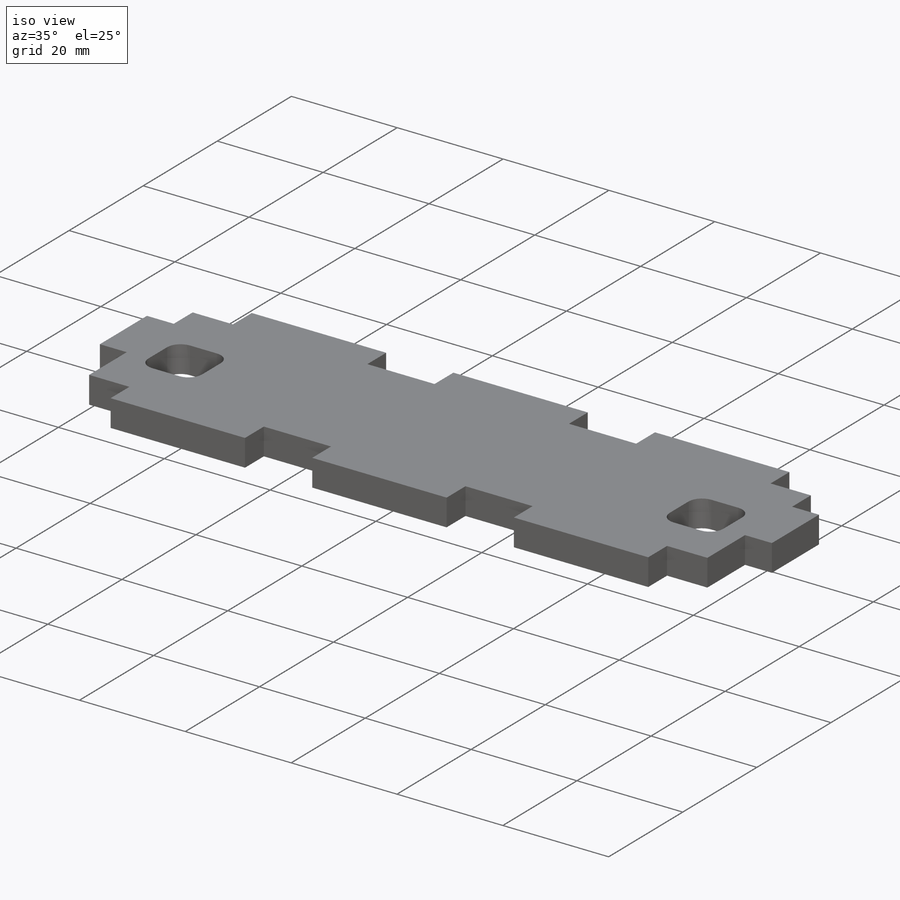
[diagram: iso view]
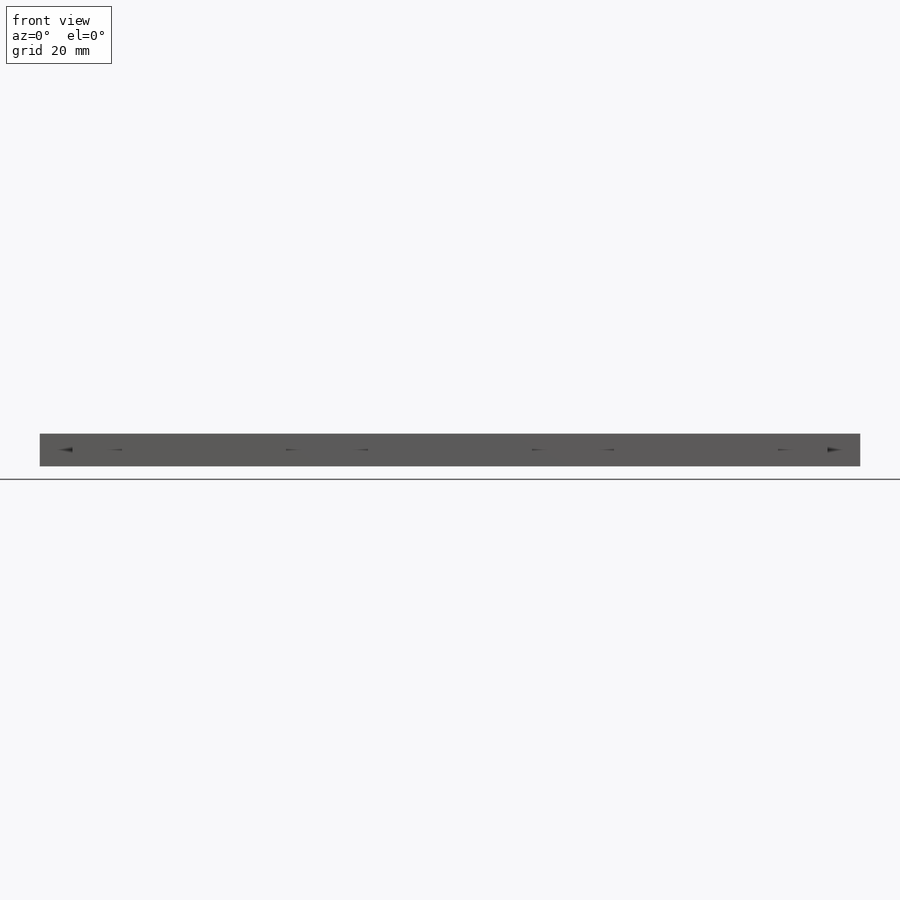
[diagram: front view]
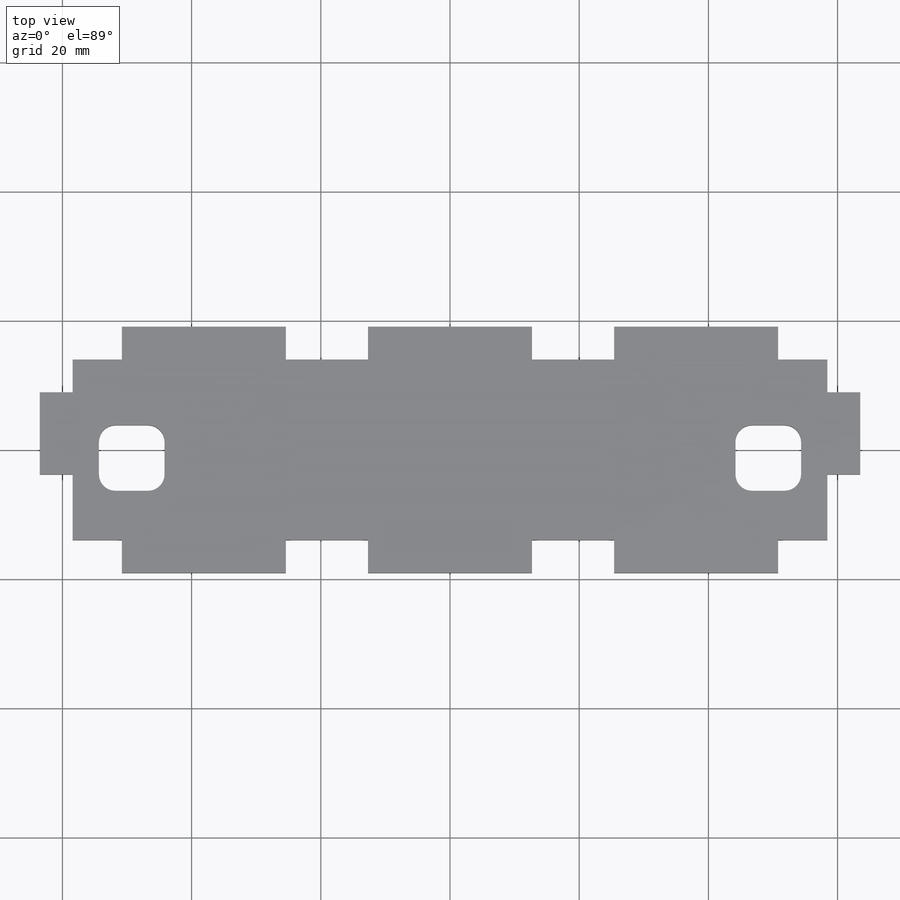
[diagram: top view]
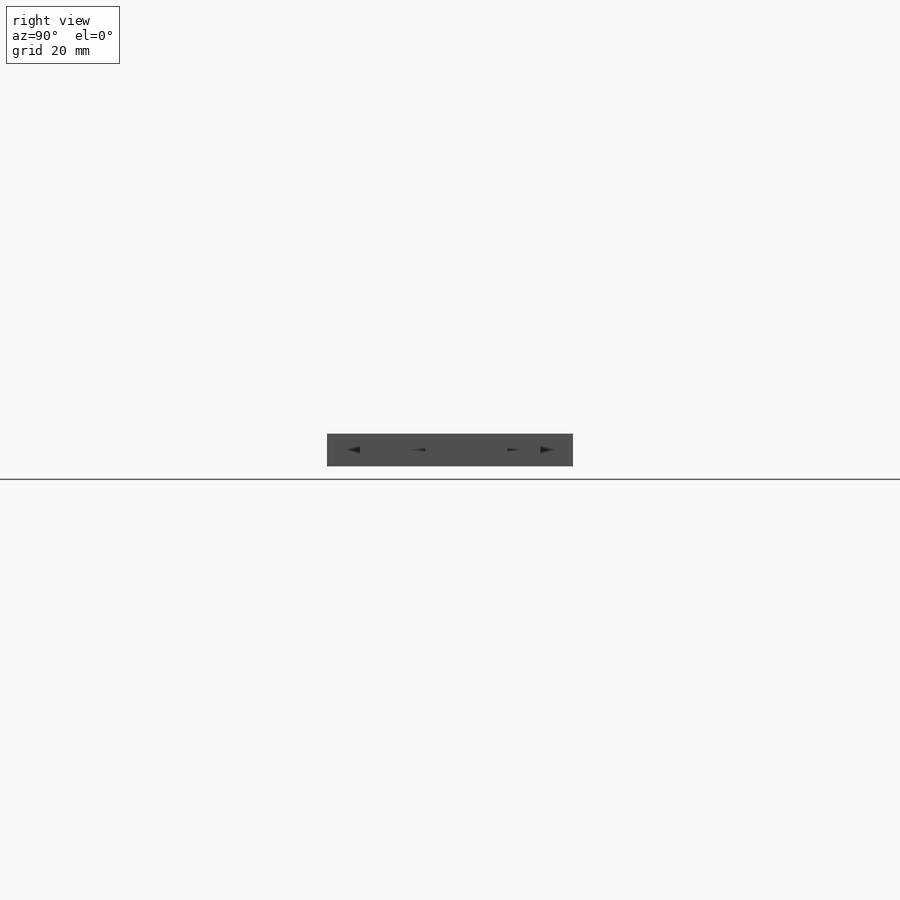
[diagram: right view]
SOLIDWORKS PART (.sldprt)
format: sldprt  version: not decoded by parser v0  size: 372,224 bytes
history: native  units: mm
features: sketch x7, cut_extrude x5, mirror x3, extrude x2, material x1, pattern_linear x1 (+13 scaffold rows collapsed)
feature tree (32):
  scaffold x13  (default folders/planes/origin — collapsed)
  material  "Material <not specified>"
  sketch  "Sketch1"  dims[D1=127.0mm D2=38.1mm]
  extrude  "Boss-Extrude1"  Depth=5.08mm
  sketch  "Sketch2"  dims[c1.D1=5.08mm c1.D2=~14.075509mm c2.D2=90.0deg c3.D2=10.16mm c3.D3=~7.812313mm c3.D4=5.08mm c3.D5=~20.127687mm c4.D3=12.7mm]
  cut_extrude  "Cut-Extrude1"  Depth=5.08mm
  mirror  "Mirror1"
  sketch  "Sketch3"  dims[c1.D1=5.08mm c1.D2=12.7mm c2.D1=5.08mm c2.D2=0.0mm c2.D3=12.7mm]
  cut_extrude  "Cut-Extrude2"  [1 undecoded]
  mirror  "Mirror2"
  sketch  "Sketch4"  dims[D1=25.4mm D2=12.7mm D3=5.08mm]
  cut_extrude  "Cut-Extrude4"  [1 undecoded]
  pattern_linear  "LPattern1"  Count1=2 Count2=1 Spacing1=38.1mm Spacing2=2.54mm
  sketch  "Sketch7"  dims[D1=5.08mm]
  cut_extrude  "Cut-Extrude7"  [1 undecoded]
  sketch  "Sketch8"  dims[c1.D1=5.08mm c1.D2=12.7mm c1.D3=12.7mm c2.D2=0.0mm c2.D4=12.7mm c2.D3=0.0mm c3.D4=0.0mm c3.D5=0.0mm c3.D6=5.08mm c3.D7=0.0mm c3.D8=0.0mm c3.D9=5.08mm]
  extrude  "Boss-Extrude2"  [1 undecoded]
  sketch  "Sketch9"  dims[D5=2.54mm D1=10.16mm D2=10.16mm D3=7.62mm D4=~9.152637mm]
  cut_extrude  "Cut-Extrude8"  [1 undecoded]
  mirror  "Mirror3"
decode coverage: 10 of 18 modeling features carry decoded parameters
note: ~ marks probable driven/reference dimensions
note: 5 parameter values undecoded
summary: no parameter record found for 5 features
note: suppression state not decoded; provenance and decode notes live in map.json
